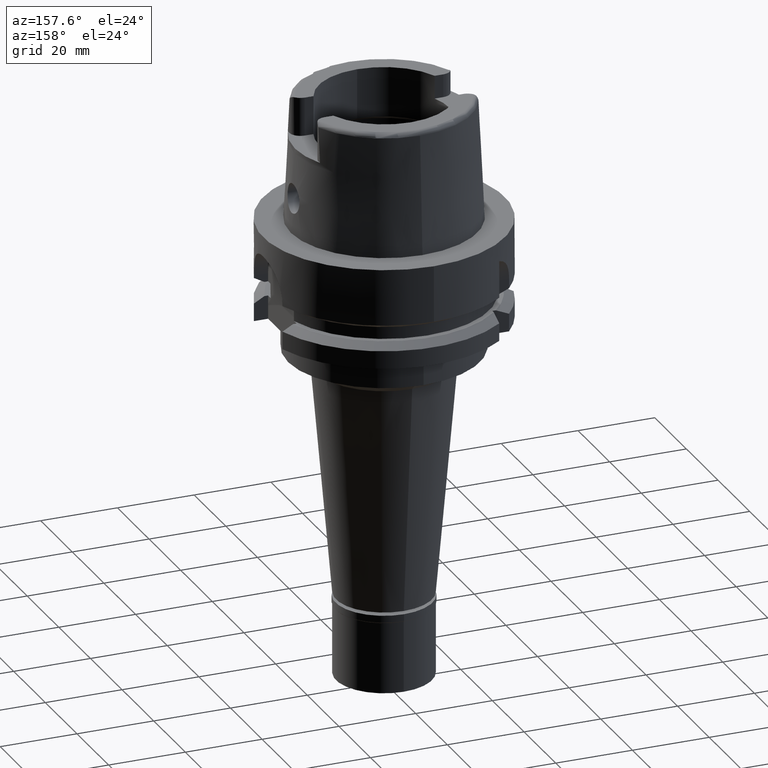
[diagram: clean part render]
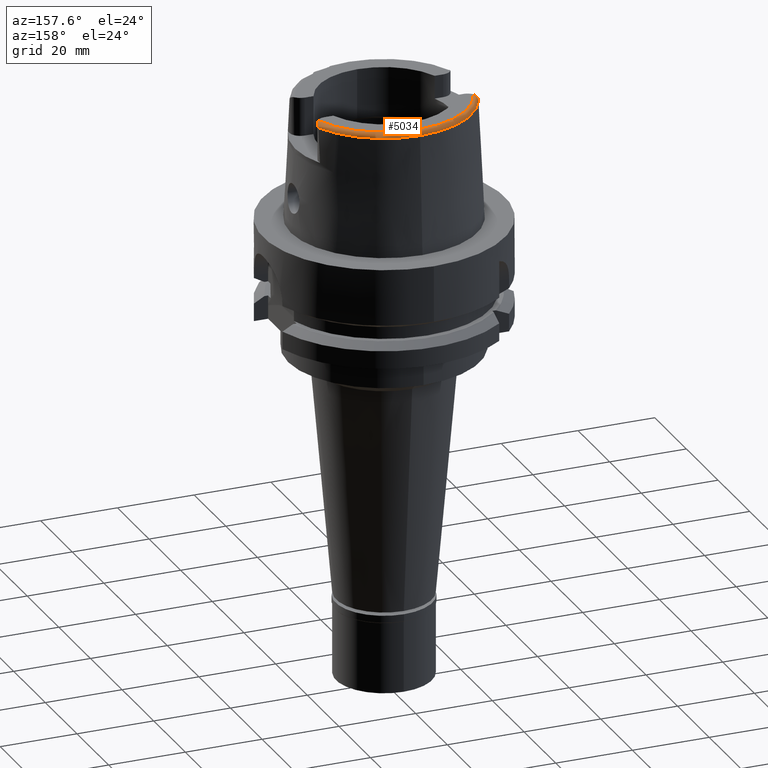
[diagram: same view with one face highlighted and labeled with its STEP entity id]
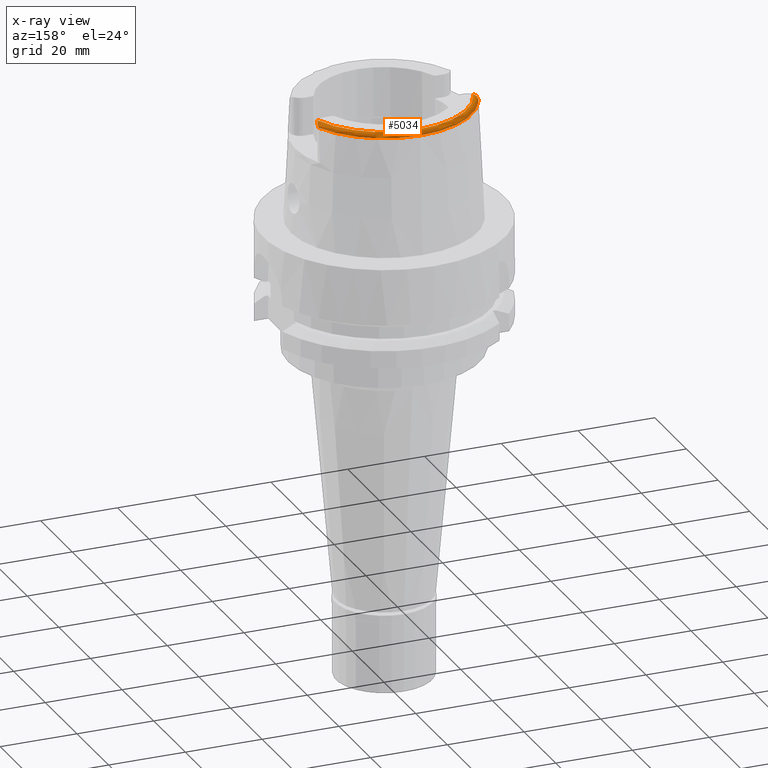
[diagram: x-ray of the same camera — body ghosted, the highlighted face saturated]
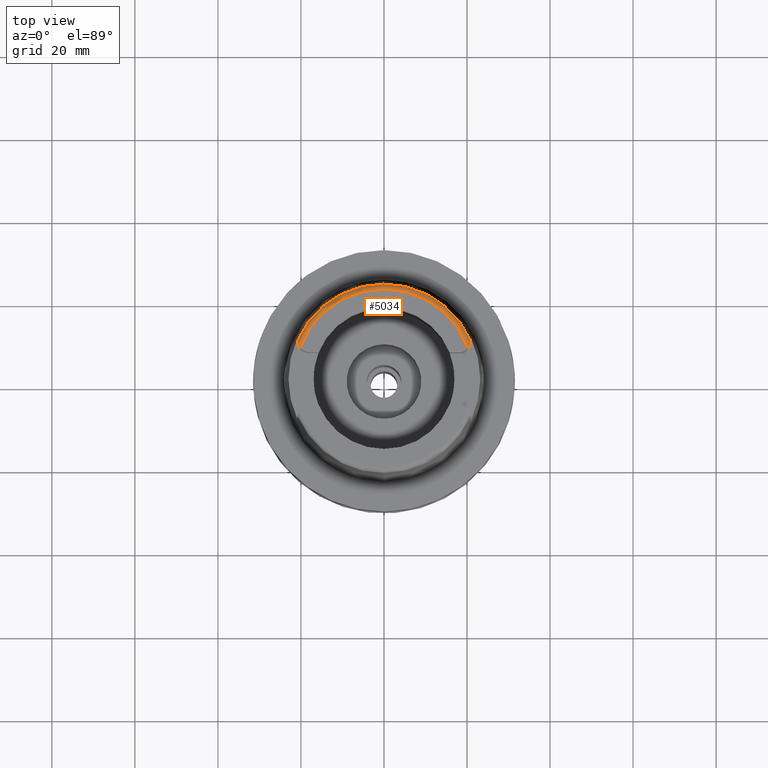
[diagram: same view with one face highlighted and labeled with its STEP entity id]
A machine part, auxiliary view. The second image highlights one B-rep face of the part: STEP entity #5034.
The next image is the same camera in x-ray: the body ghosted, the highlighted face saturated — about 0% of this face is hidden behind the body in this view.
A second angle (top view) of the same face is appended — the face is thin or edge-on in the first view.
In plain terms, the highlighted toroidal blend (fillet) surface has major radius 21.5735 mm and minor (blend) radius 1.2 mm.
Its self-contained STEP definition (entity closure, byte-faithful):
#93 = VERTEX_POINT ( 'NONE', #130 ) ;
#130 = CARTESIAN_POINT ( 'NONE',  ( -20.86974110888999689, 9.111383544936000334, 30.85992740196000383 ) ) ;
#338 = CARTESIAN_POINT ( 'NONE',  ( -20.61601005015213772, 7.967322657946446007, 31.87743921794583457 ) ) ;
#344 = B_SPLINE_CURVE_WITH_KNOTS ( 'NONE', 3,
 ( #2859, #4481, #1958, #1986 ),
 .UNSPECIFIED., .F., .F.,
 ( 4, 4 ),
 ( 0.0000000000000000000, 1.000000000000000000 ),
 .UNSPECIFIED. ) ;
#394 = CARTESIAN_POINT ( 'NONE',  ( -20.63603001458684361, 8.012842724379138915, 31.85945236283802728 ) ) ;
#399 = CIRCLE ( 'NONE', #1711, 22.77198729362000051 ) ;
#662 = CARTESIAN_POINT ( 'NONE',  ( 20.52686933704120165, 7.707568566736864746, 31.96129357617138922 ) ) ;
#694 = CARTESIAN_POINT ( 'NONE',  ( 20.78403530932522969, 8.375266648479589904, 31.66594908844082212 ) ) ;
#733 = CARTESIAN_POINT ( 'NONE',  ( -20.66373280254289213, 8.078189838601673500, 31.83252635781380491 ) ) ;
#763 = CARTESIAN_POINT ( 'NONE',  ( -20.53313941901291528, 7.796930064775969171, 31.93615438330201073 ) ) ;
#783 = ORIENTED_EDGE ( 'NONE', *, *, #3415, .F. ) ;
#915 = CARTESIAN_POINT ( 'NONE',  ( -20.86948990214479238, 9.049001737879196483, 31.07861185854972419 ) ) ;
#1098 = CARTESIAN_POINT ( 'NONE',  ( 20.80812861973196704, 8.484616292598332166, 31.59601856929097252 ) ) ;
#1154 = CARTESIAN_POINT ( 'NONE',  ( 20.71353049245396605, 8.145831907266538607, 31.78690919854371089 ) ) ;
#1172 = CARTESIAN_POINT ( 'NONE',  ( 0.0000000000000000000, 0.0000000000000000000, 32.00000000000000000 ) ) ;
#1181 = CARTESIAN_POINT ( 'NONE',  ( 20.41080230020410724, 7.519213671220826178, 32.00000000000000711 ) ) ;
#1201 = AXIS2_PLACEMENT_3D ( 'NONE', #2549, #1276, #3465 ) ;
#1231 = DIRECTION ( 'NONE',  ( -0.9395199128801114963, 0.3424942821446042007, 0.0000000000000000000 ) ) ;
#1276 = DIRECTION ( 'NONE',  ( 0.0000000000000000000, 0.0000000000000000000, 1.000000000000000000 ) ) ;
#1407 = ORIENTED_EDGE ( 'NONE', *, *, #2216, .F. ) ;
#1439 = ORIENTED_EDGE ( 'NONE', *, *, #4901, .F. ) ;
#1457 = B_SPLINE_CURVE_WITH_KNOTS ( 'NONE', 3,
 ( #2399, #1562, #4880, #5318, #4938, #4464, #2793, #1476, #1588, #2372, #1892, #1098, #2842, #4075, #694, #4046, #1154, #3258, #4962, #1917, #3572, #3204, #662, #1181, #2292 ),
 .UNSPECIFIED., .F., .F.,
 ( 4, 2, 2, 2, 1, 1, 1, 2, 2, 2, 1, 1, 2, 2, 4 ),
 ( 0.0000000000000000000, 0.1250000000000309197, 0.2500000000000618394, 0.3750000000000927591, 0.4375000000001039169, 0.4687500000001109668, 0.4843750000001121325, 0.4921875000001117439, 0.5000000000001113554, 0.6250000000000789369, 0.6875000000000619504, 0.7187500000000511813, 0.7343750000000474065, 0.7500000000000436318, 1.000000000000000000 ),
 .UNSPECIFIED. ) ;
#1476 = CARTESIAN_POINT ( 'NONE',  ( 20.83735508839744810, 8.642453937974226008, 31.48626476364446702 ) ) ;
#1496 = CARTESIAN_POINT ( 'NONE',  ( 0.0000000000000000000, 0.0000000000000000000, 30.85992712280000205 ) ) ;
#1562 = CARTESIAN_POINT ( 'NONE',  ( 20.87000000000000099, 9.048560737698604584, 31.05492036569344094 ) ) ;
#1588 = CARTESIAN_POINT ( 'NONE',  ( 20.82934721220581409, 8.592286627542144117, 31.52341459444280858 ) ) ;
#1604 = CARTESIAN_POINT ( 'NONE',  ( -20.83207406524253358, 8.677734350791377338, 31.47648301111808422 ) ) ;
#1659 = CARTESIAN_POINT ( 'NONE',  ( -20.73802604156652762, 8.288059603505310236, 31.72922363334014406 ) ) ;
#1711 = AXIS2_PLACEMENT_3D ( 'NONE', #5016, #4600, #4183 ) ;
#1892 = CARTESIAN_POINT ( 'NONE',  ( 20.81107240483089171, 8.498443844373674949, 31.58703035042934815 ) ) ;
#1911 = EDGE_LOOP ( 'NONE', ( #3991, #783, #1439, #1407, #2487, #2774 ) ) ;
#1917 = CARTESIAN_POINT ( 'NONE',  ( 20.64149021385955152, 7.962031350697255760, 31.86641675357761017 ) ) ;
#1958 = CARTESIAN_POINT ( 'NONE',  ( 20.87000000000000099, 9.091125264142386087, 30.95748277894920264 ) ) ;
#1986 = CARTESIAN_POINT ( 'NONE',  ( 20.87000000000000099, 9.070000000000000284, 31.00584217417999966 ) ) ;
#2015 = CARTESIAN_POINT ( 'NONE',  ( -20.74611633376789754, 8.314290046143387514, 31.71484491377336923 ) ) ;
#2041 = CARTESIAN_POINT ( 'NONE',  ( -20.34119617115335998, 7.482569851841464725, 32.00000000000000000 ) ) ;
#2077 = AXIS2_PLACEMENT_3D ( 'NONE', #1496, #4073, #5233 ) ;
#2081 = AXIS2_PLACEMENT_3D ( 'NONE', #1172, #3305, #1231 ) ;
#2216 = EDGE_CURVE ( 'NONE', #2995, #2677, #399, .T. ) ;
#2232 = TOROIDAL_SURFACE ( 'NONE', #1201, 21.57348458609000019, 1.199999999999999956 ) ;
#2292 = CARTESIAN_POINT ( 'NONE',  ( 20.28174256341000259, 7.352969181062000814, 32.00000000000000000 ) ) ;
#2372 = CARTESIAN_POINT ( 'NONE',  ( 20.81760041217782842, 8.530289684445985898, 31.56595809347293624 ) ) ;
#2387 = CARTESIAN_POINT ( 'NONE',  ( -20.79483121496698317, 8.495917890673911899, 31.60526026745732864 ) ) ;
#2399 = CARTESIAN_POINT ( 'NONE',  ( 20.87000000000000099, 9.070000000000000284, 31.00584217417999966 ) ) ;
#2465 = CARTESIAN_POINT ( 'NONE',  ( -20.50324826660703081, 7.742239957769356806, 31.95135572061106544 ) ) ;
#2487 = ORIENTED_EDGE ( 'NONE', *, *, #3785, .F. ) ;
#2549 = CARTESIAN_POINT ( 'NONE',  ( 0.0000000000000000000, 0.0000000000000000000, 30.80000000000000071 ) ) ;
#2580 = CARTESIAN_POINT ( 'NONE',  ( -20.86073660596773394, 8.917699760874873149, 31.24877219800148254 ) ) ;
#2677 = VERTEX_POINT ( 'NONE', #4805 ) ;
#2774 = ORIENTED_EDGE ( 'NONE', *, *, #4936, .F. ) ;
#2793 = CARTESIAN_POINT ( 'NONE',  ( 20.85108393979654906, 8.738682325346646351, 31.41105313606539795 ) ) ;
#2831 = CARTESIAN_POINT ( 'NONE',  ( -20.40937469574824092, 7.582758210743816285, 31.98783893015277258 ) ) ;
#2842 = CARTESIAN_POINT ( 'NONE',  ( 20.80613298519590515, 8.475358334448806374, 31.60200121555305230 ) ) ;
#2859 = CARTESIAN_POINT ( 'NONE',  ( 20.86994457043000040, 9.110917567833000774, 30.85992712280000205 ) ) ;
#2969 = FACE_OUTER_BOUND ( 'NONE', #1911, .T. ) ;
#2995 = VERTEX_POINT ( 'NONE', #4688 ) ;
#3204 = CARTESIAN_POINT ( 'NONE',  ( 20.62711808095667010, 7.929231876991335248, 31.87904242553559087 ) ) ;
#3223 = CARTESIAN_POINT ( 'NONE',  ( -20.59628239380915105, 7.923843761206106784, 31.89397067226943605 ) ) ;
#3258 = CARTESIAN_POINT ( 'NONE',  ( 20.68876211468789350, 8.076846088999172224, 31.81914915867724858 ) ) ;
#3305 = DIRECTION ( 'NONE',  ( 0.0000000000000000000, 0.0000000000000000000, -1.000000000000000000 ) ) ;
#3330 = CARTESIAN_POINT ( 'NONE',  ( -20.76722830540239428, 8.386028356636590075, 31.67421676992351820 ) ) ;
#3415 = EDGE_CURVE ( 'NONE', #4231, #4141, #1457, .T. ) ;
#3417 = CARTESIAN_POINT ( 'NONE',  ( -20.85601410094224306, 8.865297988870974422, 31.30633917618789397 ) ) ;
#3439 = CARTESIAN_POINT ( 'NONE',  ( -20.86260846798974455, 8.942697054464570527, 31.21871428522414860 ) ) ;
#3465 = DIRECTION ( 'NONE',  ( -0.0006539142454762719193, -0.9999997861980568503, 0.0000000000000000000 ) ) ;
#3572 = CARTESIAN_POINT ( 'NONE',  ( 20.63148894759076768, 7.939101764444100873, 31.87528929913259645 ) ) ;
#3699 = CARTESIAN_POINT ( 'NONE',  ( -20.80898272745929489, 8.559907805038164952, 31.56189786785978413 ) ) ;
#3755 = CARTESIAN_POINT ( 'NONE',  ( -20.69434133796708153, 8.156845854484275904, 31.79712230816437213 ) ) ;
#3785 = EDGE_CURVE ( 'NONE', #93, #2995, #4406, .T. ) ;
#3806 = CARTESIAN_POINT ( 'NONE',  ( -20.86956480455430452, 9.098237117435765242, 30.96835639257330186 ) ) ;
#3834 = CARTESIAN_POINT ( 'NONE',  ( -20.85310918409266279, 8.837055629495072395, 31.33495219197250137 ) ) ;
#3991 = ORIENTED_EDGE ( 'NONE', *, *, #4431, .T. ) ;
#4046 = CARTESIAN_POINT ( 'NONE',  ( 20.75904957197347045, 8.283633093199251007, 31.71793141950184136 ) ) ;
#4073 = DIRECTION ( 'NONE',  ( 0.0000000000000000000, 0.0000000000000000000, -1.000000000000000000 ) ) ;
#4075 = CARTESIAN_POINT ( 'NONE',  ( 20.80534060999944046, 8.471714528463335725, 31.60434589509076986 ) ) ;
#4141 = VERTEX_POINT ( 'NONE', #4236 ) ;
#4173 = CARTESIAN_POINT ( 'NONE',  ( -20.62895027811674709, 7.996485410350426370, 31.86603821496405331 ) ) ;
#4183 = DIRECTION ( 'NONE',  ( 0.0000000000000000000, 1.000000000000000000, 0.0000000000000000000 ) ) ;
#4231 = VERTEX_POINT ( 'NONE', #4735 ) ;
#4236 = CARTESIAN_POINT ( 'NONE',  ( 20.28174256341000259, 7.352969181062000814, 32.00000000000000000 ) ) ;
#4252 = CARTESIAN_POINT ( 'NONE',  ( -20.86974110888999689, 9.111383544936000334, 30.85992740196000383 ) ) ;
#4400 = CARTESIAN_POINT ( 'NONE',  ( -20.26871835884000106, 7.388795116669998997, 32.00000000000000000 ) ) ;
#4406 = CIRCLE ( 'NONE', #2077, 22.77198729362000407 ) ;
#4431 = EDGE_CURVE ( 'NONE', #4808, #4141, #4819, .T. ) ;
#4464 = CARTESIAN_POINT ( 'NONE',  ( 20.85719974110424957, 8.797349919933560969, 31.35969609636951461 ) ) ;
#4481 = CARTESIAN_POINT ( 'NONE',  ( 20.87000000000000099, 9.104744530399051072, 30.90884546147586676 ) ) ;
#4508 = CARTESIAN_POINT ( 'NONE',  ( -20.57562639314649644, 7.881171704445263160, 31.90879197614573926 ) ) ;
#4592 = CARTESIAN_POINT ( 'NONE',  ( -20.26871835884000106, 7.388795116669998997, 32.00000000000000000 ) ) ;
#4600 = DIRECTION ( 'NONE',  ( 0.0000000000000000000, 0.0000000000000000000, -1.000000000000000000 ) ) ;
#4673 = CARTESIAN_POINT ( 'NONE',  ( -20.84221651330555147, 8.746299024656693177, 31.42027981940049486 ) ) ;
#4688 = CARTESIAN_POINT ( 'NONE',  ( 0.0000000000000000000, 22.77198729362000051, 30.85992712280000205 ) ) ;
#4735 = CARTESIAN_POINT ( 'NONE',  ( 20.87000000000000099, 9.070000000000000284, 31.00584217417999966 ) ) ;
#4805 = CARTESIAN_POINT ( 'NONE',  ( 20.86994457043000040, 9.110917567833000774, 30.85992712280000205 ) ) ;
#4808 = VERTEX_POINT ( 'NONE', #4400 ) ;
#4819 = CIRCLE ( 'NONE', #2081, 21.57348458608998598 ) ;
#4880 = CARTESIAN_POINT ( 'NONE',  ( 20.86978469676805048, 9.019509766610092072, 31.10456620543769901 ) ) ;
#4901 = EDGE_CURVE ( 'NONE', #2677, #4231, #344, .T. ) ;
#4927 = CARTESIAN_POINT ( 'NONE',  ( -20.75056370582649734, 8.329129343723719714, 31.70654529346168005 ) ) ;
#4936 = EDGE_CURVE ( 'NONE', #4808, #93, #5159, .T. ) ;
#4938 = CARTESIAN_POINT ( 'NONE',  ( 20.86553412833914578, 8.903238492862087128, 31.25455010769132613 ) ) ;
#4962 = CARTESIAN_POINT ( 'NONE',  ( 20.65622616840944303, 7.996444905690206717, 31.85282681907170854 ) ) ;
#5016 = CARTESIAN_POINT ( 'NONE',  ( 0.0000000000000000000, 0.0000000000000000000, 30.85992712280000205 ) ) ;
#5031 = CARTESIAN_POINT ( 'NONE',  ( -20.77906463153369288, 8.430608116599589863, 31.64727908724552918 ) ) ;
#5034 = ADVANCED_FACE ( 'NONE', ( #2969 ), #2232, .T. ) ;
#5159 = B_SPLINE_CURVE_WITH_KNOTS ( 'NONE', 3,
 ( #4592, #2041, #2831, #2465, #763, #4508, #3223, #338, #4173, #394, #733, #3755, #5335, #1659, #2015, #4927, #3330, #5031, #2387, #5366, #3699, #5389, #1604, #4673, #3834, #3417, #2580, #3439, #915, #3806, #4252 ),
 .UNSPECIFIED., .F., .F.,
 ( 4, 2, 2, 1, 2, 2, 1, 1, 2, 2, 2, 2, 2, 2, 2, 2, 4 ),
 ( 0.0000000000000000000, 0.1250000000000034694, 0.1875000000000052180, 0.2187500000000044409, 0.2343750000000040523, 0.2500000000000036637, 0.3125000000000098255, 0.3437500000000134337, 0.3593750000000149880, 0.3750000000000165423, 0.4375000000000197065, 0.4687500000000194844, 0.5000000000000193179, 0.6250000000000179856, 0.6875000000000172085, 0.7500000000000163203, 1.000000000000000000 ),
 .UNSPECIFIED. ) ;
#5233 = DIRECTION ( 'NONE',  ( -0.9164655183265837390, 0.4001136759951928745, 0.0000000000000000000 ) ) ;
#5318 = CARTESIAN_POINT ( 'NONE',  ( 20.86750348494516771, 8.946234642795499070, 31.20499318138783451 ) ) ;
#5335 = CARTESIAN_POINT ( 'NONE',  ( -20.72557964023407706, 8.248704362113350896, 31.75040510723775711 ) ) ;
#5366 = CARTESIAN_POINT ( 'NONE',  ( -20.79975537572442690, 8.517428150439501522, 31.59098527823272207 ) ) ;
#5389 = CARTESIAN_POINT ( 'NONE',  ( -20.81360547239151515, 8.582524559108632545, 31.54588463422203759 ) ) ;